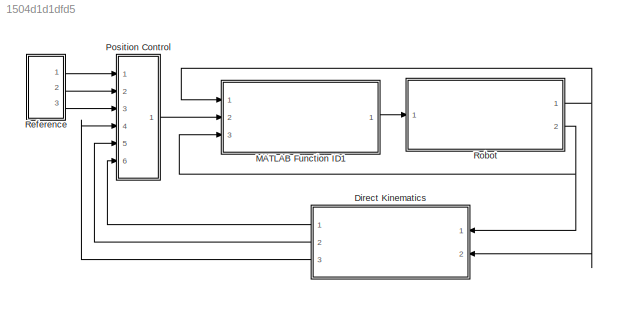
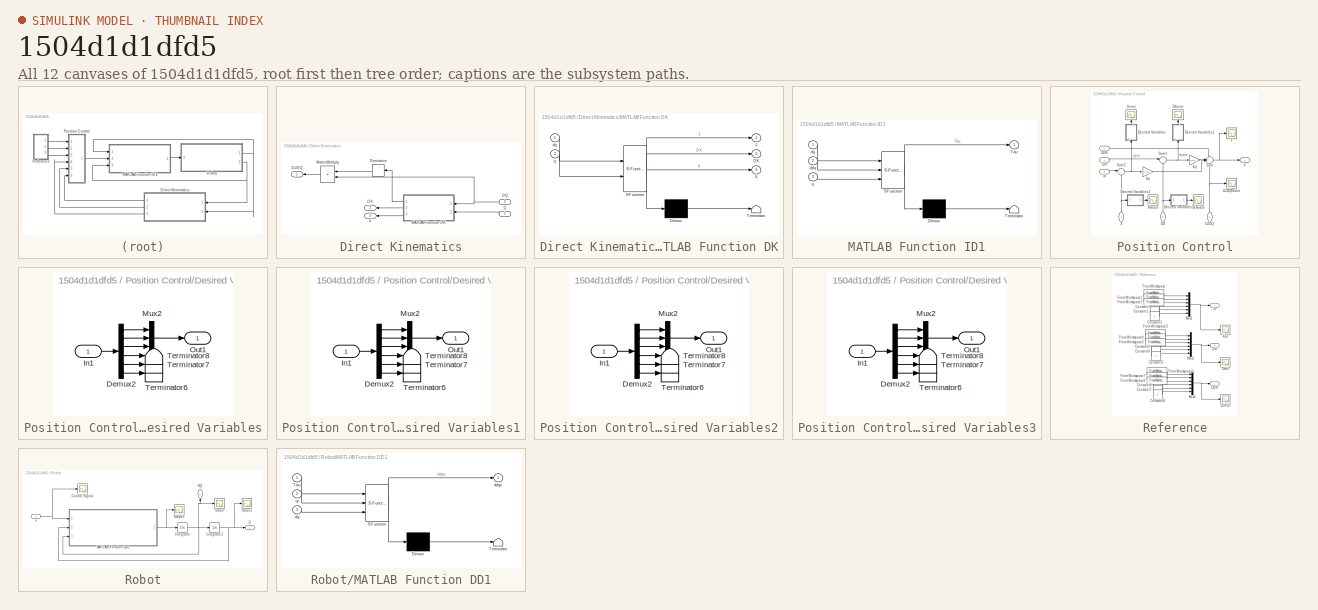
[diagram: thumbnail index - all 12 canvases of the model, root first then tree order]
MODEL slx_1504d1d1dfd5
KIND model
CONFIG AbsTol = auto
CONFIG EnableMultiTasking = off
CONFIG FixedStep = 0.005
CONFIG MaxStep = auto
CONFIG MinStep = auto
CONFIG RelTol = 1e-3
CONFIG SampleTimeConstraint = Unconstrained
CONFIG Solver = VariableStepAuto
CONFIG SolverName = VariableStepAuto
CONFIG StartTime = 0.0
CONFIG StopTime = 15
BLOCK [SubSystem] Direct Kinematics
  Ports = [2, 3]
  RequestExecContextInheritance = off
BLOCK [Outport] Direct Kinematics/DJDQ
  IconDisplay = Port number
BLOCK [Inport] Direct Kinematics/DQ
  IconDisplay = Port number
  Port = 2
BLOCK [Outport] Direct Kinematics/DX
  IconDisplay = Port number
  Port = 2
BLOCK [Derivative] Direct Kinematics/Derivative
  CoefficientInTFapproximation = 0.001
BLOCK [SubSystem] Direct Kinematics/MATLAB Function DK
  ErrorFcn = Stateflow.Translate.translate
  PermitHierarchicalResolution = ExplicitOnly
  Ports = [2, 3]
  RequestExecContextInheritance = off
  SFBlockType = MATLAB Function
  TreatAsAtomicUnit = on
BLOCK [Demux] Direct Kinematics/MATLAB Function DK/ Demux 
  Outputs = 1
  Ports = [1, 1]
BLOCK [S-Function] Direct Kinematics/MATLAB Function DK/ SFunction 
  EnableBusSupport = on
  FunctionName = sf_sfun
  PortCounts = [2 4]
  Ports = [2, 4]
  SFcnIsStateOwnerBlock = off
  SFunctionDeploymentMode = off
  Tag = Stateflow S-Function External_coordinates_Position_Control 1
BLOCK [Terminator] Direct Kinematics/MATLAB Function DK/ Terminator 
BLOCK [Outport] Direct Kinematics/MATLAB Function DK/DX
  IconDisplay = Port number
  Port = 2
BLOCK [Outport] Direct Kinematics/MATLAB Function DK/J
  IconDisplay = Port number
BLOCK [Outport] Direct Kinematics/MATLAB Function DK/X
  IconDisplay = Port number
  Port = 3
BLOCK [Inport] Direct Kinematics/MATLAB Function DK/dq
  IconDisplay = Port number
BLOCK [Inport] Direct Kinematics/MATLAB Function DK/q
  IconDisplay = Port number
  Port = 2
BLOCK [Product] Direct Kinematics/MatrixMultiply
  InputSameDT = off
  Multiplication = Matrix(*)
  OutDataTypeStr = Inherit: Inherit via internal rule
  Ports = [2, 1]
  RndMeth = Floor
  SaturateOnIntegerOverflow = off
BLOCK [Inport] Direct Kinematics/Q
  IconDisplay = Port number
BLOCK [Outport] Direct Kinematics/X
  IconDisplay = Port number
  Port = 3
BLOCK [SubSystem] MATLAB Function ID1
  ErrorFcn = Stateflow.Translate.translate
  PermitHierarchicalResolution = ExplicitOnly
  Ports = [3, 1]
  RequestExecContextInheritance = off
  SFBlockType = MATLAB Function
  TreatAsAtomicUnit = on
BLOCK [Demux] MATLAB Function ID1/ Demux 
  Outputs = 1
  Ports = [1, 1]
BLOCK [S-Function] MATLAB Function ID1/ SFunction 
  EnableBusSupport = on
  FunctionName = sf_sfun
  PortCounts = [3 2]
  Ports = [3, 2]
  SFcnIsStateOwnerBlock = off
  SFunctionDeploymentMode = off
  Tag = Stateflow S-Function External_coordinates_Position_Control 4
BLOCK [Terminator] MATLAB Function ID1/ Terminator 
BLOCK [Outport] MATLAB Function ID1/Tau
  IconDisplay = Port number
BLOCK [Inport] MATLAB Function ID1/ddq
  IconDisplay = Port number
  Port = 2
BLOCK [Inport] MATLAB Function ID1/dq
  IconDisplay = Port number
BLOCK [Inport] MATLAB Function ID1/q
  IconDisplay = Port number
  Port = 3
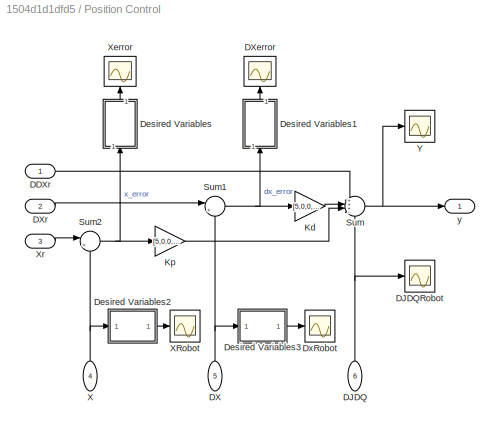
BLOCK [SubSystem] Position Control
  Ports = [6, 1]
  RequestExecContextInheritance = off
BLOCK [Inport] Position Control/DDXr
  IconDisplay = Port number
BLOCK [Inport] Position Control/DJDQ
  IconDisplay = Port number
  Port = 6
BLOCK [Scope] Position Control/DJDQRobot
  Floating = off
  NumInputPorts = 1
  Ports = [1]
  ScopeSpecificationString = Simulink.scopes.TimeScopeBlockCfg('CurrentConfiguration', extmgr.ConfigurationSet(extmgr.Configuration('Core','General UI',true),extmgr.Configuration('Core','Source UI',true),extmgr.Configuration('Sources','WiredSimulink',true,'DataLoggingVariableName','ScopeData5'),extmgr.Configuration('Visuals','Time Domain',true,'SerializedDisplays',{struct('MinYLimReal','-0.0616','MaxYLimReal','0.0069','YLabel...<+1457ch>
BLOCK [Inport] Position Control/DX
  IconDisplay = Port number
  Port = 5
BLOCK [Scope] Position Control/DXerror
  Floating = off
  NumInputPorts = 1
  Ports = [1]
  ScopeSpecificationString = Simulink.scopes.TimeScopeBlockCfg('CurrentConfiguration', extmgr.ConfigurationSet(extmgr.Configuration('Core','General UI',true),extmgr.Configuration('Core','Source UI',true),extmgr.Configuration('Sources','WiredSimulink',true,'DataLoggingVariableName','ScopeData12'),extmgr.Configuration('Visuals','Time Domain',true,'SerializedDisplays',{struct('MinYLimReal','-0.08592','MaxYLimReal','0.12878','YLa...<+1802ch>
BLOCK [Inport] Position Control/DXr
  IconDisplay = Port number
  Port = 2
BLOCK [SubSystem] Position Control/Desired Variables
  Ports = [1, 1]
  RequestExecContextInheritance = off
BLOCK [Demux] Position Control/Desired Variables/Demux2
  DisplayOption = bar
  Outputs = 6
  Ports = [1, 6]
BLOCK [Inport] Position Control/Desired Variables/In1
  IconDisplay = Port number
BLOCK [Mux] Position Control/Desired Variables/Mux2
  DisplayOption = bar
  Inputs = 3
  Ports = [3, 1]
BLOCK [Outport] Position Control/Desired Variables/Out1
  IconDisplay = Port number
BLOCK [Terminator] Position Control/Desired Variables/Terminator6
BLOCK [Terminator] Position Control/Desired Variables/Terminator7
BLOCK [Terminator] Position Control/Desired Variables/Terminator8
BLOCK [SubSystem] Position Control/Desired Variables1
  Ports = [1, 1]
  RequestExecContextInheritance = off
BLOCK [Demux] Position Control/Desired Variables1/Demux2
  DisplayOption = bar
  Outputs = 6
  Ports = [1, 6]
BLOCK [Inport] Position Control/Desired Variables1/In1
  IconDisplay = Port number
BLOCK [Mux] Position Control/Desired Variables1/Mux2
  DisplayOption = bar
  Inputs = 3
  Ports = [3, 1]
BLOCK [Outport] Position Control/Desired Variables1/Out1
  IconDisplay = Port number
BLOCK [Terminator] Position Control/Desired Variables1/Terminator6
BLOCK [Terminator] Position Control/Desired Variables1/Terminator7
BLOCK [Terminator] Position Control/Desired Variables1/Terminator8
BLOCK [SubSystem] Position Control/Desired Variables2
  Ports = [1, 1]
  RequestExecContextInheritance = off
BLOCK [Demux] Position Control/Desired Variables2/Demux2
  DisplayOption = bar
  Outputs = 6
  Ports = [1, 6]
BLOCK [Inport] Position Control/Desired Variables2/In1
  IconDisplay = Port number
BLOCK [Mux] Position Control/Desired Variables2/Mux2
  DisplayOption = bar
  Inputs = 3
  Ports = [3, 1]
BLOCK [Outport] Position Control/Desired Variables2/Out1
  IconDisplay = Port number
BLOCK [Terminator] Position Control/Desired Variables2/Terminator6
BLOCK [Terminator] Position Control/Desired Variables2/Terminator7
BLOCK [Terminator] Position Control/Desired Variables2/Terminator8
BLOCK [SubSystem] Position Control/Desired Variables3
  Ports = [1, 1]
  RequestExecContextInheritance = off
BLOCK [Demux] Position Control/Desired Variables3/Demux2
  DisplayOption = bar
  Outputs = 6
  Ports = [1, 6]
BLOCK [Inport] Position Control/Desired Variables3/In1
  IconDisplay = Port number
BLOCK [Mux] Position Control/Desired Variables3/Mux2
  DisplayOption = bar
  Inputs = 3
  Ports = [3, 1]
BLOCK [Outport] Position Control/Desired Variables3/Out1
  IconDisplay = Port number
BLOCK [Terminator] Position Control/Desired Variables3/Terminator6
BLOCK [Terminator] Position Control/Desired Variables3/Terminator7
BLOCK [Terminator] Position Control/Desired Variables3/Terminator8
BLOCK [Scope] Position Control/DxRobot
  Floating = off
  NumInputPorts = 1
  Ports = [1]
  ScopeSpecificationString = Simulink.scopes.TimeScopeBlockCfg('CurrentConfiguration', extmgr.ConfigurationSet(extmgr.Configuration('Core','General UI',true),extmgr.Configuration('Core','Source UI',true),extmgr.Configuration('Sources','WiredSimulink',true,'DataLoggingVariableName','ScopeData2'),extmgr.Configuration('Visuals','Time Domain',true,'SerializedDisplays',{struct('MinYLimReal','-0.13469','MaxYLimReal','0.0897','YLabe...<+1799ch>
BLOCK [Gain] Position Control/Kd
  Gain = [5,0,0,0,0,0;0,5,0,0,0,0;0,0,5,0,0,0;0,0,0,0,0,0;0,0,0,0,0,0;0,0,0,0,0,0]
  Multiplication = Matrix(K*u)
  OutDataTypeStr = Inherit: Inherit via internal rule
  ParamDataTypeStr = Inherit: Inherit via internal rule
  SaturateOnIntegerOverflow = off
BLOCK [Gain] Position Control/Kp
  Gain = [5,0,0,0,0,0;0,5,0,0,0,0;0,0,5,0,0,0;0,0,0,0,0,0;0,0,0,0,0,0;0,0,0,0,0,0]
  Multiplication = Matrix(K*u)
  OutDataTypeStr = Inherit: Inherit via internal rule
  ParamDataTypeStr = Inherit: Inherit via internal rule
  SaturateOnIntegerOverflow = off
BLOCK [Sum] Position Control/Sum
  IconShape = round
  InputSameDT = off
  Inputs = +++-
  OutDataTypeStr = Inherit: Inherit via internal rule
  Ports = [4, 1]
  SaturateOnIntegerOverflow = off
BLOCK [Sum] Position Control/Sum1
  IconShape = round
  InputSameDT = off
  Inputs = |+-
  OutDataTypeStr = Inherit: Inherit via internal rule
  Ports = [2, 1]
  SaturateOnIntegerOverflow = off
BLOCK [Sum] Position Control/Sum2
  IconShape = round
  InputSameDT = off
  Inputs = |+-
  OutDataTypeStr = Inherit: Inherit via internal rule
  Ports = [2, 1]
  SaturateOnIntegerOverflow = off
BLOCK [Inport] Position Control/X
  IconDisplay = Port number
  Port = 4
BLOCK [Scope] Position Control/XRobot 
  Floating = off
  NumInputPorts = 1
  Ports = [1]
  ScopeSpecificationString = Simulink.scopes.TimeScopeBlockCfg('CurrentConfiguration', extmgr.ConfigurationSet(extmgr.Configuration('Core','General UI',true),extmgr.Configuration('Core','Source UI',true),extmgr.Configuration('Sources','WiredSimulink',true,'DataLoggingVariableName','ScopeData6'),extmgr.Configuration('Visuals','Time Domain',true,'SerializedDisplays',{struct('MinYLimReal','-0.17659','MaxYLimReal','0.46959','YLab...<+1820ch>
BLOCK [Scope] Position Control/Xerror
  Floating = off
  NumInputPorts = 1
  Ports = [1]
  ScopeSpecificationString = Simulink.scopes.TimeScopeBlockCfg('CurrentConfiguration', extmgr.ConfigurationSet(extmgr.Configuration('Core','General UI',true),extmgr.Configuration('Core','Source UI',true),extmgr.Configuration('Sources','WiredSimulink',true,'DataLoggingVariableName','ScopeData1'),extmgr.Configuration('Visuals','Time Domain',true,'SerializedDisplays',{struct('MinYLimReal','-0.13192','MaxYLimReal','0.08776','YLab...<+1817ch>
BLOCK [Inport] Position Control/Xr
  IconDisplay = Port number
  Port = 3
BLOCK [Scope] Position Control/Y
  Floating = off
  NumInputPorts = 1
  Ports = [1]
  ScopeSpecificationString = Simulink.scopes.TimeScopeBlockCfg('CurrentConfiguration', extmgr.ConfigurationSet(extmgr.Configuration('Core','General UI',true),extmgr.Configuration('Core','Source UI',true),extmgr.Configuration('Sources','WiredSimulink',true,'DataLoggingVariableName','ScopeData9'),extmgr.Configuration('Visuals','Time Domain',true,'SerializedDisplays',{struct('MinYLimReal','-0.10209','MaxYLimReal','0.12005','YLab...<+1456ch>
BLOCK [Outport] Position Control/y
  IconDisplay = Port number
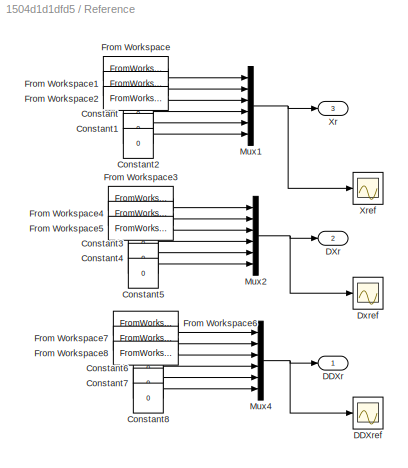
BLOCK [SubSystem] Reference
  Ports = [0, 3]
  RequestExecContextInheritance = off
BLOCK [Constant] Reference/Constant
  Value = 0
BLOCK [Constant] Reference/Constant1
  Value = 0
BLOCK [Constant] Reference/Constant2
  Value = 0
BLOCK [Constant] Reference/Constant3
  Value = 0
BLOCK [Constant] Reference/Constant4
  Value = 0
BLOCK [Constant] Reference/Constant5
  Value = 0
BLOCK [Constant] Reference/Constant6
  Value = 0
BLOCK [Constant] Reference/Constant7
  Value = 0
BLOCK [Constant] Reference/Constant8
  Value = 0
BLOCK [Outport] Reference/DDXr
  IconDisplay = Port number
BLOCK [Scope] Reference/DDXref
  Floating = off
  NumInputPorts = 1
  Ports = [1]
  ScopeSpecificationString = Simulink.scopes.TimeScopeBlockCfg('CurrentConfiguration', extmgr.ConfigurationSet(extmgr.Configuration('Core','General UI',true),extmgr.Configuration('Core','Source UI',true),extmgr.Configuration('Sources','WiredSimulink',true,'DataLoggingVariableName','ScopeData14'),extmgr.Configuration('Visuals','Time Domain',true,'SerializedDisplays',{struct('MinYLimReal','-0.00031','MaxYLimReal','0.00031','YLa...<+1476ch>
BLOCK [Outport] Reference/DXr
  IconDisplay = Port number
  Port = 2
BLOCK [Scope] Reference/Dxref
  Floating = off
  NumInputPorts = 1
  Ports = [1]
  ScopeSpecificationString = Simulink.scopes.TimeScopeBlockCfg('CurrentConfiguration', extmgr.ConfigurationSet(extmgr.Configuration('Core','General UI',true),extmgr.Configuration('Core','Source UI',true),extmgr.Configuration('Sources','WiredSimulink',true,'DataLoggingVariableName','ScopeData13'),extmgr.Configuration('Visuals','Time Domain',true),extmgr.Configuration('Tools','Plot Navigation',true),extmgr.Configuration('Tools'...<+41ch>
BLOCK [FromWorkspace] Reference/From Workspace
  OutputAfterFinalValue = Holding final value
  SampleTime = dt
  VariableName = [tx x]
  ZeroCross = on
BLOCK [FromWorkspace] Reference/From Workspace1
  OutputAfterFinalValue = Holding final value
  SampleTime = dt
  VariableName = [ty y]
  ZeroCross = on
BLOCK [FromWorkspace] Reference/From Workspace2
  OutputAfterFinalValue = Holding final value
  SampleTime = dt
  VariableName = [tz z]
  ZeroCross = on
BLOCK [FromWorkspace] Reference/From Workspace3
  OutputAfterFinalValue = Holding final value
  SampleTime = dt
  VariableName = [tx dx]
  ZeroCross = on
BLOCK [FromWorkspace] Reference/From Workspace4
  OutputAfterFinalValue = Holding final value
  SampleTime = dt
  VariableName = [ty dy]
  ZeroCross = on
BLOCK [FromWorkspace] Reference/From Workspace5
  OutputAfterFinalValue = Holding final value
  SampleTime = dt
  VariableName = [tz dz]
  ZeroCross = on
BLOCK [FromWorkspace] Reference/From Workspace6
  OutputAfterFinalValue = Holding final value
  SampleTime = dt
  VariableName = [tx ddx]
  ZeroCross = on
BLOCK [FromWorkspace] Reference/From Workspace7
  OutputAfterFinalValue = Holding final value
  SampleTime = dt
  VariableName = [ty ddy]
  ZeroCross = on
BLOCK [FromWorkspace] Reference/From Workspace8
  OutputAfterFinalValue = Holding final value
  SampleTime = dt
  VariableName = [tz ddz]
  ZeroCross = on
BLOCK [Mux] Reference/Mux1
  DisplayOption = bar
  Inputs = 6
  Ports = [6, 1]
BLOCK [Mux] Reference/Mux2
  DisplayOption = bar
  Inputs = 6
  Ports = [6, 1]
BLOCK [Mux] Reference/Mux4
  DisplayOption = bar
  Inputs = 6
  Ports = [6, 1]
BLOCK [Outport] Reference/Xr
  IconDisplay = Port number
  Port = 3
BLOCK [Scope] Reference/Xref
  Floating = off
  NumInputPorts = 1
  Ports = [1]
  ScopeSpecificationString = Simulink.scopes.TimeScopeBlockCfg('CurrentConfiguration', extmgr.ConfigurationSet(extmgr.Configuration('Core','General UI',true),extmgr.Configuration('Core','Source UI',true),extmgr.Configuration('Sources','WiredSimulink',true,'DataLoggingVariableName','ScopeData11'),extmgr.Configuration('Visuals','Time Domain',true),extmgr.Configuration('Tools','Plot Navigation',true),extmgr.Configuration('Tools'...<+41ch>
BLOCK [SubSystem] Robot
  Ports = [1, 2]
  RequestExecContextInheritance = off
BLOCK [Scope] Robot/Control Signal
  Floating = off
  NumInputPorts = 1
  Ports = [1]
  ScopeSpecificationString = Simulink.scopes.TimeScopeBlockCfg('CurrentConfiguration', extmgr.ConfigurationSet(extmgr.Configuration('Core','General UI',true),extmgr.Configuration('Core','Source UI',true),extmgr.Configuration('Sources','WiredSimulink',true,'DataLoggingVariableName','ScopeData3'),extmgr.Configuration('Visuals','Time Domain',true),extmgr.Configuration('Tools','Plot Navigation',true),extmgr.Configuration('Tools',...<+40ch>
BLOCK [Outport] Robot/DQ
  IconDisplay = Port number
BLOCK [Integrator] Robot/Integrator
  Ports = [1, 1]
BLOCK [Integrator] Robot/Integrator1
  InitialCondition = [0,0,-pi/2,0,-pi/2,0]
  Ports = [1, 1]
BLOCK [SubSystem] Robot/MATLAB Function DD1
  ErrorFcn = Stateflow.Translate.translate
  PermitHierarchicalResolution = ExplicitOnly
  Ports = [3, 1]
  RequestExecContextInheritance = off
  SFBlockType = MATLAB Function
  TreatAsAtomicUnit = on
BLOCK [Demux] Robot/MATLAB Function DD1/ Demux 
  Outputs = 1
  Ports = [1, 1]
BLOCK [S-Function] Robot/MATLAB Function DD1/ SFunction 
  EnableBusSupport = on
  FunctionName = sf_sfun
  PortCounts = [3 2]
  Ports = [3, 2]
  SFcnIsStateOwnerBlock = off
  SFunctionDeploymentMode = off
  Tag = Stateflow S-Function External_coordinates_Position_Control 3
BLOCK [Terminator] Robot/MATLAB Function DD1/ Terminator 
BLOCK [Inport] Robot/MATLAB Function DD1/Tau
  IconDisplay = Port number
BLOCK [Outport] Robot/MATLAB Function DD1/ddqo
  IconDisplay = Port number
BLOCK [Inport] Robot/MATLAB Function DD1/dqi
  IconDisplay = Port number
  Port = 3
BLOCK [Inport] Robot/MATLAB Function DD1/qi
  IconDisplay = Port number
  Port = 2
BLOCK [Outport] Robot/Q
  IconDisplay = Port number
  Port = 2
BLOCK [Scope] Robot/Scope
  Floating = off
  NumInputPorts = 1
  Ports = [1]
  ScopeSpecificationString = Simulink.scopes.TimeScopeBlockCfg('CurrentConfiguration', extmgr.ConfigurationSet(extmgr.Configuration('Core','General UI',true),extmgr.Configuration('Core','Source UI',true),extmgr.Configuration('Sources','WiredSimulink',true,'DataLoggingVariableName','ScopeData3'),extmgr.Configuration('Visuals','Time Domain',true,'SerializedDisplays',{struct('MinYLimReal','-0.47564','MaxYLimReal','0.59578','YLab...<+1473ch>
BLOCK [Scope] Robot/Scope1
  Floating = off
  NumInputPorts = 1
  Ports = [1]
  ScopeSpecificationString = Simulink.scopes.TimeScopeBlockCfg('CurrentConfiguration', extmgr.ConfigurationSet(extmgr.Configuration('Core','General UI',true),extmgr.Configuration('Core','Source UI',true),extmgr.Configuration('Sources','WiredSimulink',true,'DataLoggingVariableName','ScopeData11'),extmgr.Configuration('Visuals','Time Domain',true,'SerializedDisplays',{struct('MinYLimReal','-10431.30192','MaxYLimReal','17131.738...<+1948ch>
BLOCK [Scope] Robot/Scope2
  Floating = off
  NumInputPorts = 1
  Ports = [1]
  ScopeSpecificationString = Simulink.scopes.TimeScopeBlockCfg('CurrentConfiguration', extmgr.ConfigurationSet(extmgr.Configuration('Core','General UI',true),extmgr.Configuration('Core','Source UI',true),extmgr.Configuration('Sources','WiredSimulink',true,'DataLoggingVariableName','ScopeData2'),extmgr.Configuration('Visuals','Time Domain',true,'SerializedDisplays',{struct('MinYLimReal','-2.44892','MaxYLimReal','2.01736','YLab...<+1481ch>
BLOCK [Inport] Robot/u
  IconDisplay = Port number
NET Direct Kinematics/DQ:1 -> Direct Kinematics/MATLAB Function DK:1, Direct Kinematics/MatrixMultiply:2
LINE Direct Kinematics/Derivative:1 -> Direct Kinematics/MatrixMultiply:1
LINE Direct Kinematics/MATLAB Function DK:1 -> Direct Kinematics/Derivative:1
LINE Direct Kinematics/MATLAB Function DK:2 -> Direct Kinematics/DX:1
LINE Direct Kinematics/MATLAB Function DK:3 -> Direct Kinematics/X:1
LINE Direct Kinematics/MatrixMultiply:1 -> Direct Kinematics/DJDQ:1
LINE Direct Kinematics/Q:1 -> Direct Kinematics/MATLAB Function DK:2
LINE Direct Kinematics:1 -> Position Control:6
LINE Direct Kinematics:2 -> Position Control:5
LINE Direct Kinematics:3 -> Position Control:4
LINE MATLAB Function ID1:1 -> Robot:1
LINE Position Control/DDXr:1 -> Position Control/Sum:1
NET Position Control/DJDQ:1 -> Position Control/DJDQRobot:1, Position Control/Sum:4
NET Position Control/DX:1 -> Position Control/Desired Variables3:1, Position Control/Sum1:2
LINE Position Control/DXr:1 -> Position Control/Sum1:1
LINE Position Control/Desired Variables/Demux2:1 -> Position Control/Desired Variables/Mux2:1
LINE Position Control/Desired Variables/Demux2:2 -> Position Control/Desired Variables/Mux2:2
LINE Position Control/Desired Variables/Demux2:3 -> Position Control/Desired Variables/Mux2:3
LINE Position Control/Desired Variables/Demux2:4 -> Position Control/Desired Variables/Terminator8:1
LINE Position Control/Desired Variables/Demux2:5 -> Position Control/Desired Variables/Terminator7:1
LINE Position Control/Desired Variables/Demux2:6 -> Position Control/Desired Variables/Terminator6:1
LINE Position Control/Desired Variables/In1:1 -> Position Control/Desired Variables/Demux2:1
LINE Position Control/Desired Variables/Mux2:1 -> Position Control/Desired Variables/Out1:1
LINE Position Control/Desired Variables1/Demux2:1 -> Position Control/Desired Variables1/Mux2:1
LINE Position Control/Desired Variables1/Demux2:2 -> Position Control/Desired Variables1/Mux2:2
LINE Position Control/Desired Variables1/Demux2:3 -> Position Control/Desired Variables1/Mux2:3
LINE Position Control/Desired Variables1/Demux2:4 -> Position Control/Desired Variables1/Terminator8:1
LINE Position Control/Desired Variables1/Demux2:5 -> Position Control/Desired Variables1/Terminator7:1
LINE Position Control/Desired Variables1/Demux2:6 -> Position Control/Desired Variables1/Terminator6:1
LINE Position Control/Desired Variables1/In1:1 -> Position Control/Desired Variables1/Demux2:1
LINE Position Control/Desired Variables1/Mux2:1 -> Position Control/Desired Variables1/Out1:1
LINE Position Control/Desired Variables1:1 -> Position Control/DXerror:1
LINE Position Control/Desired Variables2/Demux2:1 -> Position Control/Desired Variables2/Mux2:1
LINE Position Control/Desired Variables2/Demux2:2 -> Position Control/Desired Variables2/Mux2:2
LINE Position Control/Desired Variables2/Demux2:3 -> Position Control/Desired Variables2/Mux2:3
LINE Position Control/Desired Variables2/Demux2:4 -> Position Control/Desired Variables2/Terminator8:1
LINE Position Control/Desired Variables2/Demux2:5 -> Position Control/Desired Variables2/Terminator7:1
LINE Position Control/Desired Variables2/Demux2:6 -> Position Control/Desired Variables2/Terminator6:1
LINE Position Control/Desired Variables2/In1:1 -> Position Control/Desired Variables2/Demux2:1
LINE Position Control/Desired Variables2/Mux2:1 -> Position Control/Desired Variables2/Out1:1
LINE Position Control/Desired Variables2:1 -> Position Control/XRobot :1
LINE Position Control/Desired Variables3/Demux2:1 -> Position Control/Desired Variables3/Mux2:1
LINE Position Control/Desired Variables3/Demux2:2 -> Position Control/Desired Variables3/Mux2:2
LINE Position Control/Desired Variables3/Demux2:3 -> Position Control/Desired Variables3/Mux2:3
LINE Position Control/Desired Variables3/Demux2:4 -> Position Control/Desired Variables3/Terminator8:1
LINE Position Control/Desired Variables3/Demux2:5 -> Position Control/Desired Variables3/Terminator7:1
LINE Position Control/Desired Variables3/Demux2:6 -> Position Control/Desired Variables3/Terminator6:1
LINE Position Control/Desired Variables3/In1:1 -> Position Control/Desired Variables3/Demux2:1
LINE Position Control/Desired Variables3/Mux2:1 -> Position Control/Desired Variables3/Out1:1
LINE Position Control/Desired Variables3:1 -> Position Control/DxRobot:1
LINE Position Control/Desired Variables:1 -> Position Control/Xerror:1
LINE Position Control/Kd:1 -> Position Control/Sum:2
LINE Position Control/Kp:1 -> Position Control/Sum:3
NET Position Control/Sum1:1 -> Position Control/Desired Variables1:1, Position Control/Kd:1
NET Position Control/Sum2:1 -> Position Control/Desired Variables:1, Position Control/Kp:1
NET Position Control/Sum:1 -> Position Control/Y:1, Position Control/y:1
NET Position Control/X:1 -> Position Control/Desired Variables2:1, Position Control/Sum2:2
LINE Position Control/Xr:1 -> Position Control/Sum2:1
LINE Position Control:1 -> MATLAB Function ID1:2
LINE Reference/Constant1:1 -> Reference/Mux1:5
LINE Reference/Constant2:1 -> Reference/Mux1:6
LINE Reference/Constant3:1 -> Reference/Mux2:4
LINE Reference/Constant4:1 -> Reference/Mux2:5
LINE Reference/Constant5:1 -> Reference/Mux2:6
LINE Reference/Constant6:1 -> Reference/Mux4:4
LINE Reference/Constant7:1 -> Reference/Mux4:5
LINE Reference/Constant8:1 -> Reference/Mux4:6
LINE Reference/Constant:1 -> Reference/Mux1:4
LINE Reference/From Workspace1:1 -> Reference/Mux1:2
LINE Reference/From Workspace2:1 -> Reference/Mux1:3
LINE Reference/From Workspace3:1 -> Reference/Mux2:1
LINE Reference/From Workspace4:1 -> Reference/Mux2:2
LINE Reference/From Workspace5:1 -> Reference/Mux2:3
LINE Reference/From Workspace6:1 -> Reference/Mux4:1
LINE Reference/From Workspace7:1 -> Reference/Mux4:2
LINE Reference/From Workspace8:1 -> Reference/Mux4:3
LINE Reference/From Workspace:1 -> Reference/Mux1:1
NET Reference/Mux1:1 -> Reference/Xr:1, Reference/Xref:1
NET Reference/Mux2:1 -> Reference/DXr:1, Reference/Dxref:1
NET Reference/Mux4:1 -> Reference/DDXr:1, Reference/DDXref:1
LINE Reference:1 -> Position Control:1
LINE Reference:2 -> Position Control:2
LINE Reference:3 -> Position Control:3
NET Robot/Integrator1:1 -> Robot/MATLAB Function DD1:2, Robot/Q:1, Robot/Scope2:1
NET Robot/Integrator:1 -> Robot/DQ:1, Robot/Integrator1:1, Robot/MATLAB Function DD1:3, Robot/Scope:1
NET Robot/MATLAB Function DD1:1 -> Robot/Integrator:1, Robot/Scope1:1
NET Robot/u:1 -> Robot/Control Signal:1, Robot/MATLAB Function DD1:1
NET Robot:1 -> Direct Kinematics:2, MATLAB Function ID1:1
NET Robot:2 -> Direct Kinematics:1, MATLAB Function ID1:3
note: NET lines group one-source signal fan-out (src -> all destinations, sorted); 1:1 wires keep LINE
CHART Direct Kinematics/MATLAB Function DK states=1 transitions=1
  STATE_LABEL 'eML_blk_kernel()'
  STATE_LABEL "SCRIPT:\nfunction [J,DX,X]   = Direct_Kinematics(dq,q)\n    J = zeros(6,6);\n    X = zeros(6,1);\n    DX = zeros(6,1);\n    DJDQ = zeros(6,1);\n    coder.extrinsic('JacobianUR3');\n    coder.extrinsic('Direct_Kinematics');\n    J = JacobianUR3(q);\n    X = Direct_Kinematics(q);\n    DX = J*dq;\nend"
CHART Robot/MATLAB Function DD1 states=1 transitions=1
  STATE_LABEL 'eML_blk_kernel()'
  STATE_LABEL "SCRIPT:\nfunction ddqo = DirectDynamics(Tau,qi,dqi)\n    ddqo = zeros(6,1);\n    coder.extrinsic('SolveSyms');\n    c = zeros(6,1);\n    m = zeros(6,6);\n    g = zeros(6,1);\n    [m,g,c] = SolveSyms(qi,dqi);\n    ddqo = m\\(Tau-c-g);\nend"
CHART MATLAB Function ID1 states=1 transitions=1
  STATE_LABEL 'eML_blk_kernel()'
  STATE_LABEL "SCRIPT:\nfunction Tau   = Inverse_Dynamics(dq,ddq,q)\n    coder.extrinsic('SolveSyms');\n    coder.extrinsic('JacobianUR3');\n    Tau = zeros(6,1);\n    c = zeros(6,1);\n    m = zeros(6,6);\n    g = zeros(6,1);\n    J = zeros(6);\n    [m,g,c] = SolveSyms(q,dq);\n    J = JacobianUR3(q);\n    ddq = J\\ddq;\n    Tau = (m*ddq + c + g);\nend"
